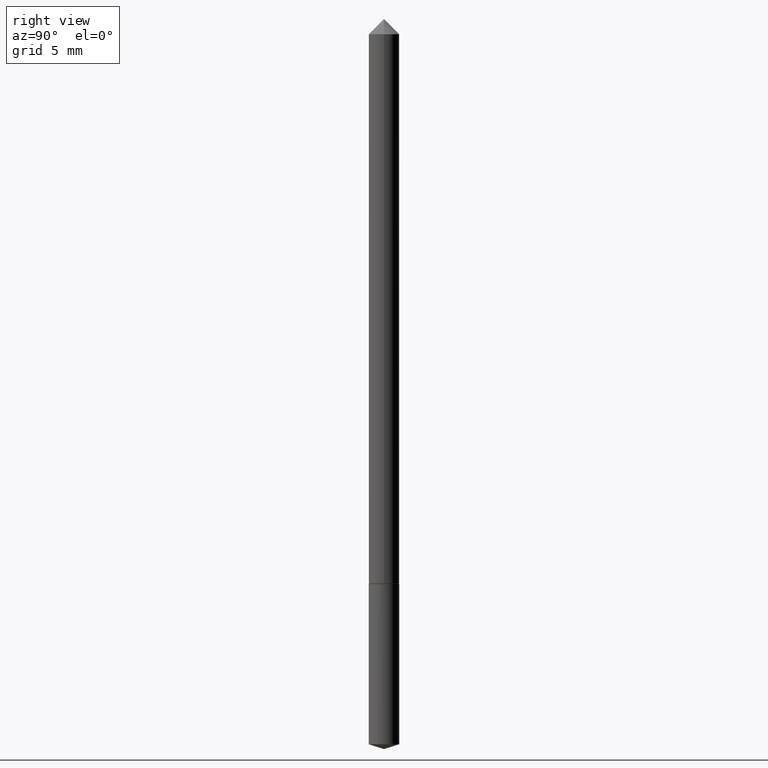
[diagram: clean part render]
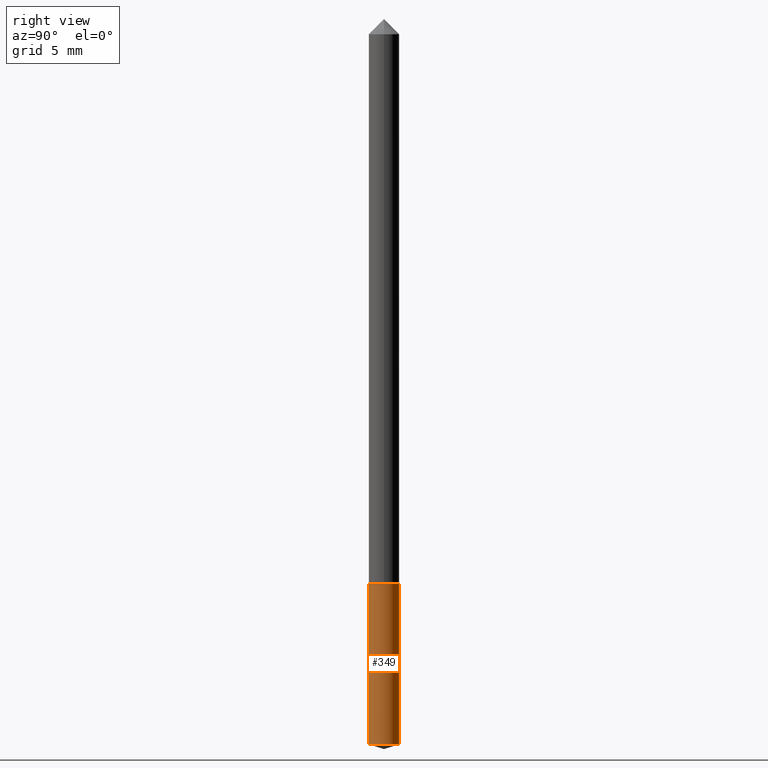
[diagram: same view with one face highlighted and labeled with its STEP entity id]
A machine part, right view. The second image highlights one B-rep face of the part: STEP entity #349.
In plain terms, the highlighted cylindrical surface (edge-blend (fillet) strip) has radius 0.6248 mm, axis along (-0, 0, 1).
Its self-contained STEP definition (entity closure, byte-faithful):
#4 = CARTESIAN_POINT ( 'NONE',  ( 1.747935129970070074E-16, 0.02459999999999680151, -0.9153000000000002245 ) ) ;
#9 = EDGE_CURVE ( 'NONE', #27, #173, #145, .T. ) ;
#16 = EDGE_CURVE ( 'NONE', #200, #27, #229, .T. ) ;
#26 = AXIS2_PLACEMENT_3D ( 'NONE', #133, #353, #159 ) ;
#27 = VERTEX_POINT ( 'NONE', #152 ) ;
#35 = ORIENTED_EDGE ( 'NONE', *, *, #16, .T. ) ;
#38 = CARTESIAN_POINT ( 'NONE',  ( 1.747935129970133429E-16, 0.02459999999999680151, -0.9153000000000002245 ) ) ;
#47 = DIRECTION ( 'NONE',  ( -2.445338470937668711E-29, 3.491667986335741257E-15, 1.000000000000000000 ) ) ;
#50 = CARTESIAN_POINT ( 'NONE',  ( -1.717808818710597549E-16, -0.02460000000000319570, -0.9152999999999998915 ) ) ;
#73 = CARTESIAN_POINT ( 'NONE',  ( -1.717808818710534933E-16, -0.02460000000000410816, -1.173343649793576970 ) ) ;
#75 = CARTESIAN_POINT ( 'NONE',  ( 2.238337598301255656E-29, -3.195752869443131440E-15, -0.9153000000000001135 ) ) ;
#86 = ORIENTED_EDGE ( 'NONE', *, *, #219, .F. ) ;
#91 = AXIS2_PLACEMENT_3D ( 'NONE', #126, #345, #260 ) ;
#94 = EDGE_CURVE ( 'NONE', #200, #333, #235, .T. ) ;
#95 = DIRECTION ( 'NONE',  ( -2.445338470937668711E-29, 3.491667986335741257E-15, 1.000000000000000000 ) ) ;
#116 = ORIENTED_EDGE ( 'NONE', *, *, #9, .T. ) ;
#124 = VECTOR ( 'NONE', #350, 39.37007874015748143 ) ;
#126 = CARTESIAN_POINT ( 'NONE',  ( 2.869341662322656677E-29, -4.096755620504595601E-15, -1.173343649793576970 ) ) ;
#133 = CARTESIAN_POINT ( 'NONE',  ( 2.238337598301255656E-29, -3.195752869443131440E-15, -0.9153000000000001135 ) ) ;
#141 = VECTOR ( 'NONE', #95, 39.37007874015748143 ) ;
#145 = LINE ( 'NONE', #4, #141 ) ;
#152 = CARTESIAN_POINT ( 'NONE',  ( 1.747935129970133676E-16, 0.02459999999999590986, -1.173343649793577192 ) ) ;
#159 = DIRECTION ( 'NONE',  ( -6.982962677686265922E-15, -1.000000000000000000, 5.552536572488340164E-15 ) ) ;
#170 = EDGE_LOOP ( 'NONE', ( #35, #116, #86, #358 ) ) ;
#173 = VERTEX_POINT ( 'NONE', #38 ) ;
#189 = DIRECTION ( 'NONE',  ( -6.982962677686265922E-15, -1.000000000000000000, 5.552536572488340164E-15 ) ) ;
#200 = VERTEX_POINT ( 'NONE', #73 ) ;
#213 = CYLINDRICAL_SURFACE ( 'NONE', #342, 0.02460000000000000034 ) ;
#219 = EDGE_CURVE ( 'NONE', #333, #173, #319, .T. ) ;
#229 = CIRCLE ( 'NONE', #91, 0.02460000000000000034 ) ;
#235 = LINE ( 'NONE', #343, #124 ) ;
#260 = DIRECTION ( 'NONE',  ( -6.982962677686265922E-15, -1.000000000000000000, 5.552536572488340164E-15 ) ) ;
#266 = FACE_OUTER_BOUND ( 'NONE', #170, .T. ) ;
#319 = CIRCLE ( 'NONE', #26, 0.02460000000000000034 ) ;
#333 = VERTEX_POINT ( 'NONE', #50 ) ;
#342 = AXIS2_PLACEMENT_3D ( 'NONE', #75, #47, #189 ) ;
#343 = CARTESIAN_POINT ( 'NONE',  ( -1.717808818710597549E-16, -0.02460000000000319570, -0.9152999999999998915 ) ) ;
#345 = DIRECTION ( 'NONE',  ( -2.445338470937668711E-29, 3.491667986335741257E-15, 1.000000000000000000 ) ) ;
#349 = ADVANCED_FACE ( 'NONE', ( #266 ), #213, .T. ) ;
#350 = DIRECTION ( 'NONE',  ( -2.445338470937668711E-29, 3.491667986335741257E-15, 1.000000000000000000 ) ) ;
#353 = DIRECTION ( 'NONE',  ( -2.445338470937668711E-29, 3.491667986335741257E-15, 1.000000000000000000 ) ) ;
#358 = ORIENTED_EDGE ( 'NONE', *, *, #94, .F. ) ;